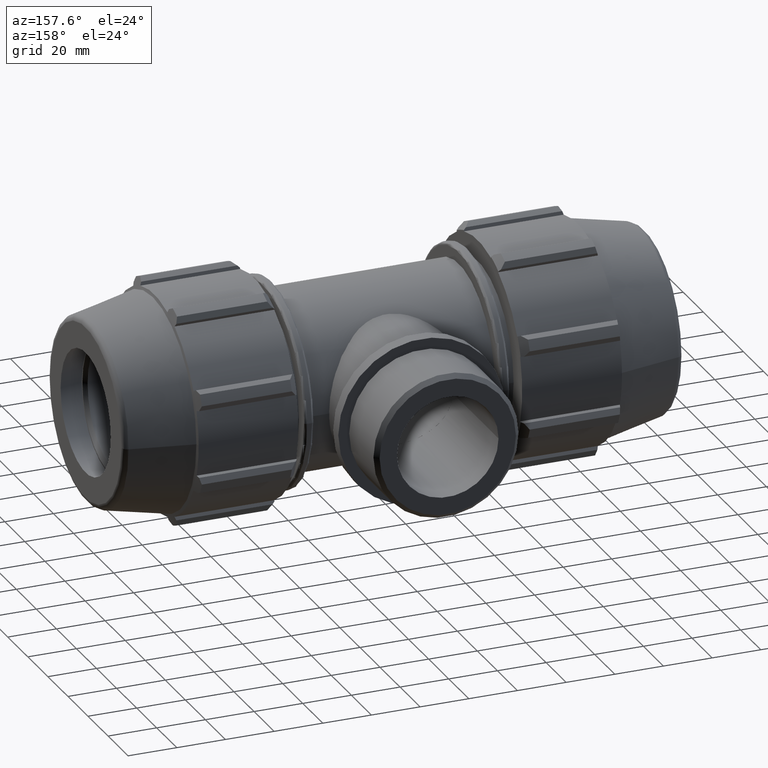
[diagram: clean part render]
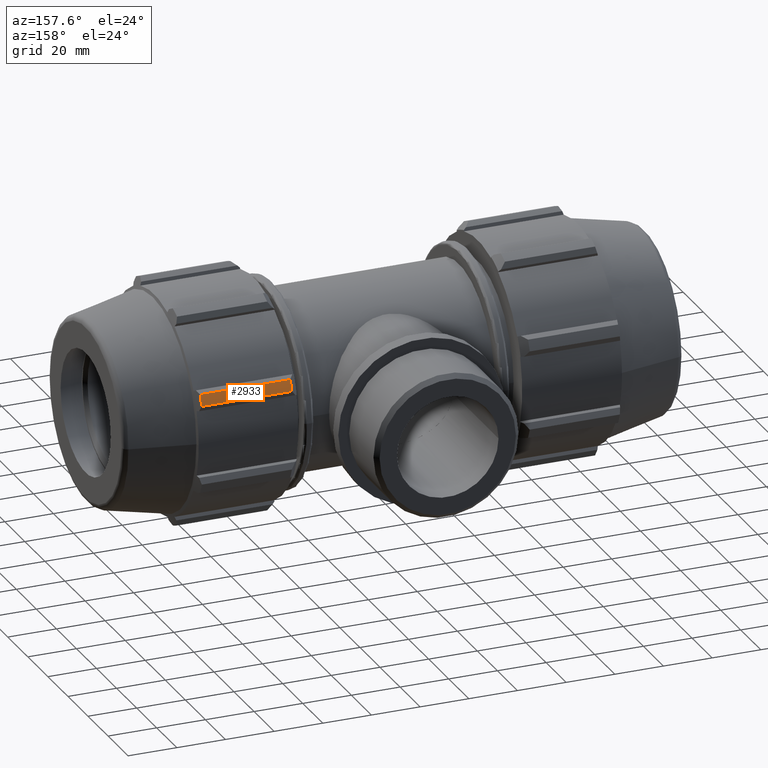
[diagram: same view with one face highlighted and labeled with its STEP entity id]
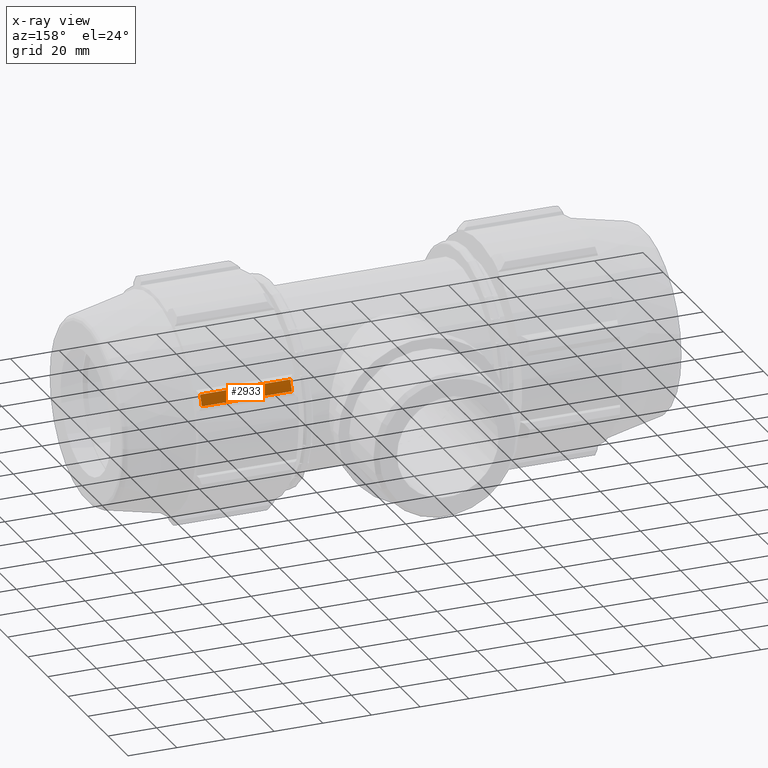
[diagram: x-ray of the same camera — body ghosted, the highlighted face saturated]
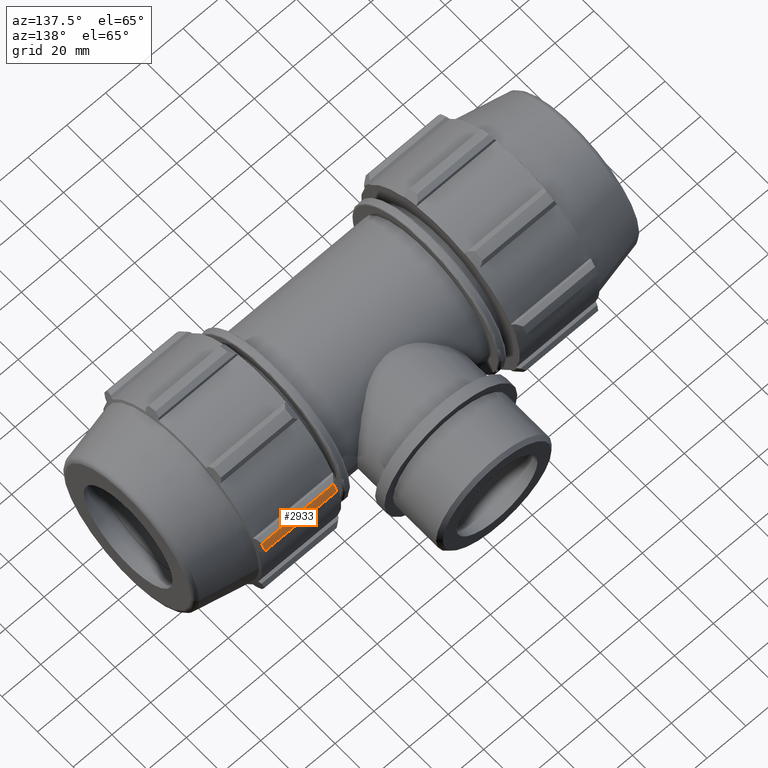
[diagram: same view with one face highlighted and labeled with its STEP entity id]
A machine part, auxiliary view. The second image highlights one B-rep face of the part: STEP entity #2933.
The next image is the same camera in x-ray: the body ghosted, the highlighted face saturated — about 0% of this face is hidden behind the body in this view.
A second angle (auxiliary view) of the same face is appended — the face is thin or edge-on in the first view.
In plain terms, the highlighted cylindrical surface (partial cylindrical patch) has radius 48 mm, axis along (1, 0, 0).
Its self-contained STEP definition (entity closure, byte-faithful):
#247=CIRCLE('',#3154,48.);
#254=CIRCLE('',#3172,48.);
#446=LINE('',#4872,#644);
#482=LINE('',#5024,#680);
#644=VECTOR('',#3774,37.0145044407782);
#680=VECTOR('',#3898,37.0145044407782);
#876=FACE_OUTER_BOUND('',#1060,.T.);
#1060=EDGE_LOOP('',(#2452,#2453,#2454,#2455));
#1345=VERTEX_POINT('',#4852);
#1346=VERTEX_POINT('',#4856);
#1350=VERTEX_POINT('',#4871);
#1365=VERTEX_POINT('',#4927);
#1697=EDGE_CURVE('',#1345,#1346,#247,.T.);
#1704=EDGE_CURVE('',#1346,#1350,#446,.T.);
#1726=EDGE_CURVE('',#1350,#1365,#254,.T.);
#1774=EDGE_CURVE('',#1365,#1345,#482,.T.);
#2452=ORIENTED_EDGE('',*,*,#1697,.F.);
#2453=ORIENTED_EDGE('',*,*,#1774,.F.);
#2454=ORIENTED_EDGE('',*,*,#1726,.F.);
#2455=ORIENTED_EDGE('',*,*,#1704,.F.);
#2626=CYLINDRICAL_SURFACE('',#3200,48.);
#2933=ADVANCED_FACE('',(#876),#2626,.T.);
#3154=AXIS2_PLACEMENT_3D('',#4857,#3763,#3764);
#3172=AXIS2_PLACEMENT_3D('',#4928,#3815,#3816);
#3200=AXIS2_PLACEMENT_3D('',#5023,#3896,#3897);
#3763=DIRECTION('center_axis',(-1.,-5.59195078520197E-16,0.));
#3764=DIRECTION('ref_axis',(-6.86255949476083E-16,1.,0.));
#3774=DIRECTION('',(1.,5.59195078520197E-16,0.));
#3815=DIRECTION('center_axis',(1.,5.59195078520197E-16,0.));
#3816=DIRECTION('ref_axis',(0.,0.,-1.));
#3896=DIRECTION('center_axis',(1.,5.59195078520197E-16,0.));
#3897=DIRECTION('ref_axis',(-6.86255949476083E-16,1.,0.));
#3898=DIRECTION('',(-1.,-5.59195078520197E-16,0.));
#4852=CARTESIAN_POINT('',(48.88,43.4288387847697,20.4434821350592));
#4856=CARTESIAN_POINT('',(48.88,45.1645512525344,16.2531015550016));
#4857=CARTESIAN_POINT('Origin',(48.8800000000001,2.73334554380672E-14,0.));
#4871=CARTESIAN_POINT('',(85.8945044407782,45.1645512525344,16.2531015550016));
#4872=CARTESIAN_POINT('',(65.9472522203891,45.1645512525344,16.2531015550016));
#4927=CARTESIAN_POINT('',(85.8945044407782,43.4288387847697,20.4434821350592));
#4928=CARTESIAN_POINT('Origin',(85.8945044407783,4.80317841552144E-14,0.));
#5023=CARTESIAN_POINT('Origin',(65.9472522203891,3.68773788835717E-14,0.));
#5024=CARTESIAN_POINT('',(65.9472522203891,43.4288387847697,20.4434821350592));